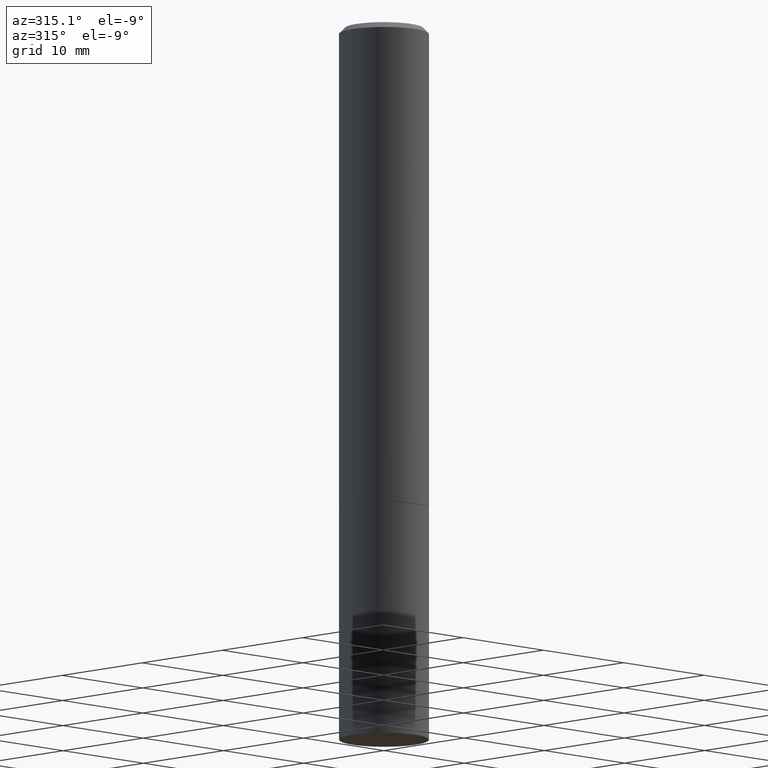
[diagram: clean part render]
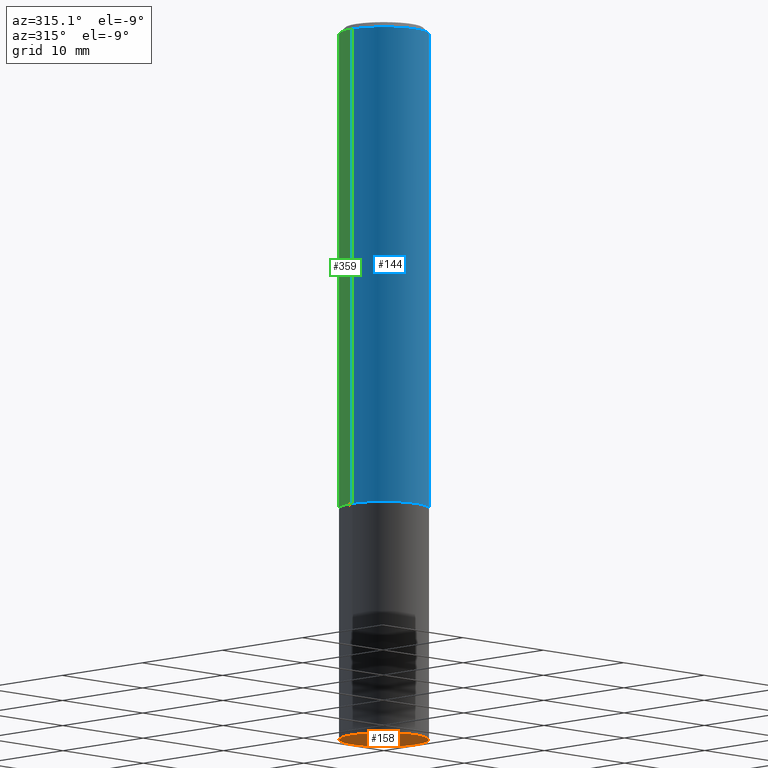
[diagram: same view with three faces highlighted in distinct colors, each labeled with its STEP entity id]
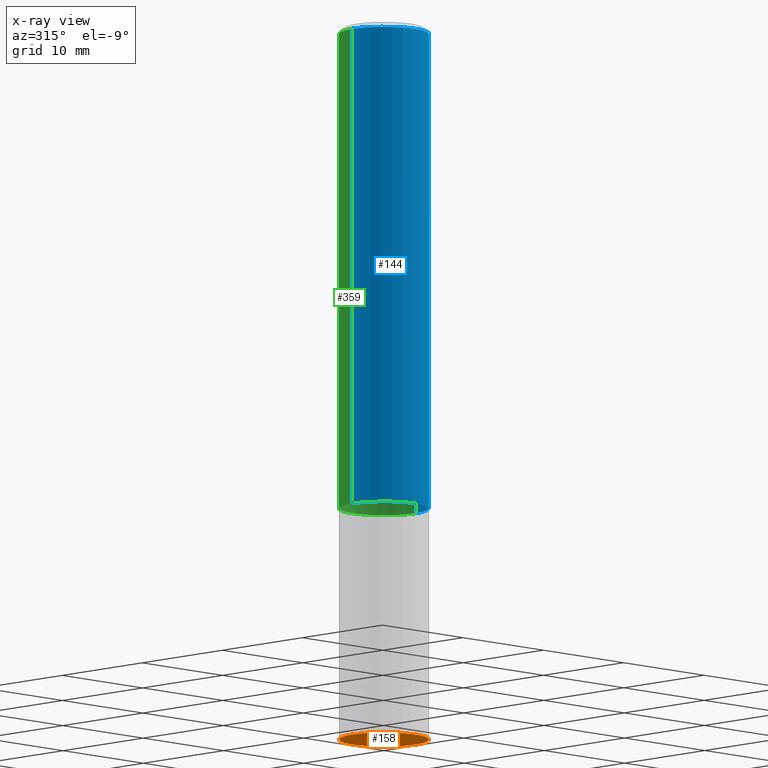
[diagram: x-ray of the same camera — body ghosted, the three highlighted faces saturated]
A machine part, auxiliary view with three faces highlighted in distinct colors.
The next image is the same camera in x-ray (body ghosted, the three faces saturated) — at least one of them is partly hidden behind the body in this view.
Their STEP definitions:

[orange] entity #158 — the highlighted planar face has unit normal (0, -0, -1).
#1 = AXIS2_PLACEMENT_3D ( 'NONE', #130, #101, #365 ) ;
#8 = EDGE_LOOP ( 'NONE', ( #320, #66 ) ) ;
#43 = DIRECTION ( 'NONE',  ( 1.000000000000000000, -6.982962677686269077E-15, 0.000000000000000000 ) ) ;
#66 = ORIENTED_EDGE ( 'NONE', *, *, #165, .F. ) ;
#78 = DIRECTION ( 'NONE',  ( 2.438088387897960049E-29, -3.491481338843145188E-15, -1.000000000000000000 ) ) ;
#81 = CARTESIAN_POINT ( 'NONE',  ( 1.091087918388540310E-15, 0.1562499999999912570, -2.500000000000000444 ) ) ;
#97 = CARTESIAN_POINT ( 'NONE',  ( 6.113672015462842613E-29, -8.728703347107864943E-15, -2.500000000000000000 ) ) ;
#101 = DIRECTION ( 'NONE',  ( -2.445468806185136597E-29, 3.491481338843145583E-15, 1.000000000000000000 ) ) ;
#130 = CARTESIAN_POINT ( 'NONE',  ( 6.113672015462842613E-29, -8.728703347107864943E-15, -2.500000000000000000 ) ) ;
#138 = EDGE_CURVE ( 'NONE', #355, #322, #362, .T. ) ;
#153 = PLANE ( 'NONE',  #180 ) ;
#158 = ADVANCED_FACE ( 'NONE', ( #213 ), #153, .T. ) ;
#165 = EDGE_CURVE ( 'NONE', #322, #355, #242, .T. ) ;
#180 = AXIS2_PLACEMENT_3D ( 'NONE', #81, #78, #227 ) ;
#196 = AXIS2_PLACEMENT_3D ( 'NONE', #97, #302, #43 ) ;
#208 = CARTESIAN_POINT ( 'NONE',  ( -0.1562500000000000000, -6.200938898912389918E-15, -2.500000000000000000 ) ) ;
#213 = FACE_OUTER_BOUND ( 'NONE', #8, .T. ) ;
#227 = DIRECTION ( 'NONE',  ( -1.000000000000000000, 6.982962677686265922E-15, -4.876176775795935793E-29 ) ) ;
#242 = CIRCLE ( 'NONE', #1, 0.1562500000000000000 ) ;
#302 = DIRECTION ( 'NONE',  ( -2.445468806185136597E-29, 3.491481338843145583E-15, 1.000000000000000000 ) ) ;
#320 = ORIENTED_EDGE ( 'NONE', *, *, #138, .F. ) ;
#322 = VERTEX_POINT ( 'NONE', #208 ) ;
#354 = CARTESIAN_POINT ( 'NONE',  ( 0.1562500000000000000, -9.819791265496344905E-15, -2.500000000000000000 ) ) ;
#355 = VERTEX_POINT ( 'NONE', #354 ) ;
#362 = CIRCLE ( 'NONE', #196, 0.1562500000000000000 ) ;
#365 = DIRECTION ( 'NONE',  ( 1.000000000000000000, -6.982962677686269077E-15, 0.000000000000000000 ) ) ;

[blue] entity #144 — the highlighted cylindrical surface (partial cylindrical patch) has radius 3.9687 mm, axis along (-0, 0, 1).
#13 = CARTESIAN_POINT ( 'NONE',  ( 0.1562499999999998057, -1.141782438928663330E-15, -0.02000000000000003511 ) ) ;
#21 = DIRECTION ( 'NONE',  ( -2.445468806185136877E-29, 3.491481338843145188E-15, 1.000000000000000000 ) ) ;
#51 = CYLINDRICAL_SURFACE ( 'NONE', #117, 0.1562499999999999167 ) ;
#52 = CIRCLE ( 'NONE', #95, 0.1562500000000000000 ) ;
#60 = ORIENTED_EDGE ( 'NONE', *, *, #152, .F. ) ;
#65 = EDGE_CURVE ( 'NONE', #346, #69, #52, .T. ) ;
#67 = CARTESIAN_POINT ( 'NONE',  ( -0.1562500000000000000, -1.869756298077466803E-15, -1.687000000000000055 ) ) ;
#69 = VERTEX_POINT ( 'NONE', #186 ) ;
#70 = ORIENTED_EDGE ( 'NONE', *, *, #112, .F. ) ;
#76 = CARTESIAN_POINT ( 'NONE',  ( 4.125505876034325766E-29, -5.890129018628387333E-15, -1.687000000000000055 ) ) ;
#95 = AXIS2_PLACEMENT_3D ( 'NONE', #76, #132, #303 ) ;
#103 = CARTESIAN_POINT ( 'NONE',  ( -0.1562499999999998057, 1.021258291611614692E-15, -0.02000000000000003511 ) ) ;
#110 = VECTOR ( 'NONE', #21, 39.37007874015748143 ) ;
#112 = EDGE_CURVE ( 'NONE', #264, #353, #166, .T. ) ;
#114 = EDGE_LOOP ( 'NONE', ( #60, #149, #301, #70 ) ) ;
#117 = AXIS2_PLACEMENT_3D ( 'NONE', #361, #280, #121 ) ;
#121 = DIRECTION ( 'NONE',  ( 1.000000000000000000, -6.982962677686265133E-15, 4.876176775795935232E-29 ) ) ;
#132 = DIRECTION ( 'NONE',  ( -2.445468806185136597E-29, 3.491481338843145583E-15, 1.000000000000000000 ) ) ;
#137 = VECTOR ( 'NONE', #319, 39.37007874015748143 ) ;
#144 = ADVANCED_FACE ( 'NONE', ( #193 ), #51, .T. ) ;
#149 = ORIENTED_EDGE ( 'NONE', *, *, #65, .T. ) ;
#152 = EDGE_CURVE ( 'NONE', #346, #264, #253, .T. ) ;
#154 = CARTESIAN_POINT ( 'NONE',  ( 4.890937612370281041E-31, -6.982962677686302702E-17, -0.02000000000000003511 ) ) ;
#157 = DIRECTION ( 'NONE',  ( 1.000000000000000000, -6.982962677686265133E-15, 0.000000000000000000 ) ) ;
#166 = CIRCLE ( 'NONE', #282, 0.1562499999999998057 ) ;
#186 = CARTESIAN_POINT ( 'NONE',  ( 0.1562500000000000000, -6.981216937016866506E-15, -1.687000000000000055 ) ) ;
#193 = FACE_OUTER_BOUND ( 'NONE', #114, .T. ) ;
#198 = EDGE_CURVE ( 'NONE', #69, #353, #248, .T. ) ;
#225 = DIRECTION ( 'NONE',  ( -2.445468806185136597E-29, 3.491481338843145583E-15, 1.000000000000000000 ) ) ;
#248 = LINE ( 'NONE', #358, #137 ) ;
#253 = LINE ( 'NONE', #333, #110 ) ;
#264 = VERTEX_POINT ( 'NONE', #103 ) ;
#280 = DIRECTION ( 'NONE',  ( -2.445468806185136597E-29, 3.491481338843145583E-15, 1.000000000000000000 ) ) ;
#282 = AXIS2_PLACEMENT_3D ( 'NONE', #154, #225, #157 ) ;
#301 = ORIENTED_EDGE ( 'NONE', *, *, #198, .T. ) ;
#303 = DIRECTION ( 'NONE',  ( 1.000000000000000000, -6.982962677686269077E-15, 0.000000000000000000 ) ) ;
#319 = DIRECTION ( 'NONE',  ( -2.445468806185136877E-29, 3.491481338843145188E-15, 1.000000000000000000 ) ) ;
#333 = CARTESIAN_POINT ( 'NONE',  ( -0.1562499999999999167, 1.110223024625155949E-15, -7.685836078523285555E-30 ) ) ;
#346 = VERTEX_POINT ( 'NONE', #67 ) ;
#353 = VERTEX_POINT ( 'NONE', #13 ) ;
#358 = CARTESIAN_POINT ( 'NONE',  ( 0.1562499999999999167, -1.091087918388478385E-15, 7.619026212181144772E-30 ) ) ;
#361 = CARTESIAN_POINT ( 'NONE',  ( 0.000000000000000000, 0.000000000000000000, 0.000000000000000000 ) ) ;

[green] entity #359 — the highlighted cylindrical surface (partial cylindrical patch) has radius 3.9687 mm, axis along (-0, 0, 1).
#13 = CARTESIAN_POINT ( 'NONE',  ( 0.1562499999999998057, -1.141782438928663330E-15, -0.02000000000000003511 ) ) ;
#21 = DIRECTION ( 'NONE',  ( -2.445468806185136877E-29, 3.491481338843145188E-15, 1.000000000000000000 ) ) ;
#22 = DIRECTION ( 'NONE',  ( 1.000000000000000000, -6.982962677686269077E-15, 0.000000000000000000 ) ) ;
#25 = DIRECTION ( 'NONE',  ( 1.000000000000000000, -6.982962677686265133E-15, 0.000000000000000000 ) ) ;
#56 = EDGE_CURVE ( 'NONE', #69, #346, #278, .T. ) ;
#67 = CARTESIAN_POINT ( 'NONE',  ( -0.1562500000000000000, -1.869756298077466803E-15, -1.687000000000000055 ) ) ;
#69 = VERTEX_POINT ( 'NONE', #186 ) ;
#72 = ORIENTED_EDGE ( 'NONE', *, *, #56, .T. ) ;
#77 = AXIS2_PLACEMENT_3D ( 'NONE', #345, #336, #25 ) ;
#99 = CARTESIAN_POINT ( 'NONE',  ( 0.000000000000000000, 0.000000000000000000, 0.000000000000000000 ) ) ;
#103 = CARTESIAN_POINT ( 'NONE',  ( -0.1562499999999998057, 1.021258291611614692E-15, -0.02000000000000003511 ) ) ;
#110 = VECTOR ( 'NONE', #21, 39.37007874015748143 ) ;
#137 = VECTOR ( 'NONE', #319, 39.37007874015748143 ) ;
#152 = EDGE_CURVE ( 'NONE', #346, #264, #253, .T. ) ;
#164 = CYLINDRICAL_SURFACE ( 'NONE', #363, 0.1562499999999999167 ) ;
#175 = EDGE_LOOP ( 'NONE', ( #72, #267, #350, #205 ) ) ;
#186 = CARTESIAN_POINT ( 'NONE',  ( 0.1562500000000000000, -6.981216937016866506E-15, -1.687000000000000055 ) ) ;
#189 = AXIS2_PLACEMENT_3D ( 'NONE', #191, #334, #22 ) ;
#191 = CARTESIAN_POINT ( 'NONE',  ( 4.125505876034325766E-29, -5.890129018628387333E-15, -1.687000000000000055 ) ) ;
#198 = EDGE_CURVE ( 'NONE', #69, #353, #248, .T. ) ;
#205 = ORIENTED_EDGE ( 'NONE', *, *, #198, .F. ) ;
#220 = DIRECTION ( 'NONE',  ( -2.445468806185136597E-29, 3.491481338843145583E-15, 1.000000000000000000 ) ) ;
#236 = EDGE_CURVE ( 'NONE', #353, #264, #257, .T. ) ;
#248 = LINE ( 'NONE', #358, #137 ) ;
#253 = LINE ( 'NONE', #333, #110 ) ;
#257 = CIRCLE ( 'NONE', #77, 0.1562499999999998057 ) ;
#264 = VERTEX_POINT ( 'NONE', #103 ) ;
#267 = ORIENTED_EDGE ( 'NONE', *, *, #152, .T. ) ;
#278 = CIRCLE ( 'NONE', #189, 0.1562500000000000000 ) ;
#312 = FACE_OUTER_BOUND ( 'NONE', #175, .T. ) ;
#319 = DIRECTION ( 'NONE',  ( -2.445468806185136877E-29, 3.491481338843145188E-15, 1.000000000000000000 ) ) ;
#333 = CARTESIAN_POINT ( 'NONE',  ( -0.1562499999999999167, 1.110223024625155949E-15, -7.685836078523285555E-30 ) ) ;
#334 = DIRECTION ( 'NONE',  ( -2.445468806185136597E-29, 3.491481338843145583E-15, 1.000000000000000000 ) ) ;
#335 = DIRECTION ( 'NONE',  ( 1.000000000000000000, -6.982962677686265133E-15, 4.876176775795935232E-29 ) ) ;
#336 = DIRECTION ( 'NONE',  ( -2.445468806185136597E-29, 3.491481338843145583E-15, 1.000000000000000000 ) ) ;
#345 = CARTESIAN_POINT ( 'NONE',  ( 4.890937612370281041E-31, -6.982962677686302702E-17, -0.02000000000000003511 ) ) ;
#346 = VERTEX_POINT ( 'NONE', #67 ) ;
#350 = ORIENTED_EDGE ( 'NONE', *, *, #236, .F. ) ;
#353 = VERTEX_POINT ( 'NONE', #13 ) ;
#358 = CARTESIAN_POINT ( 'NONE',  ( 0.1562499999999999167, -1.091087918388478385E-15, 7.619026212181144772E-30 ) ) ;
#359 = ADVANCED_FACE ( 'NONE', ( #312 ), #164, .T. ) ;
#363 = AXIS2_PLACEMENT_3D ( 'NONE', #99, #220, #335 ) ;